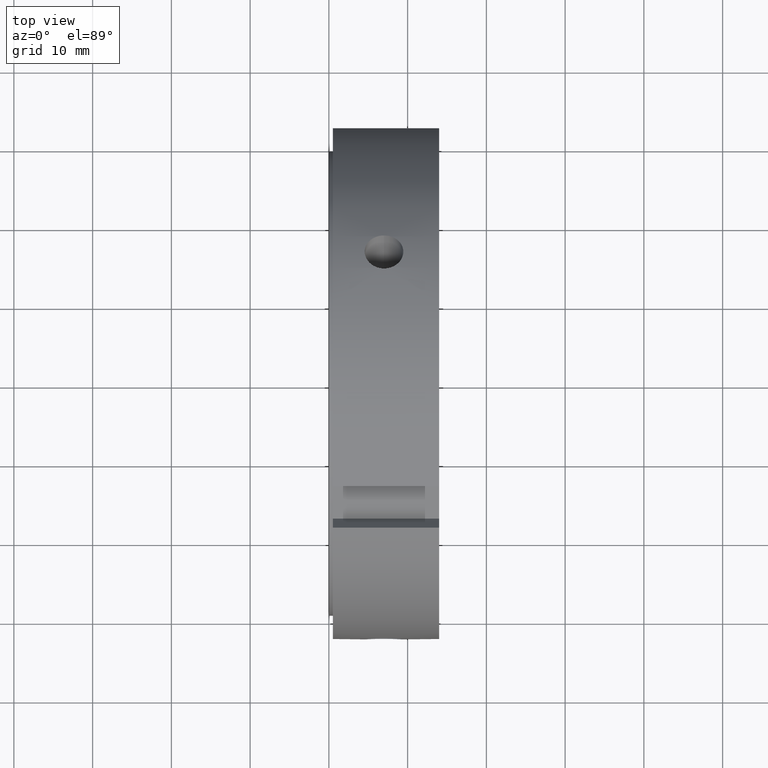
[diagram: clean part render]
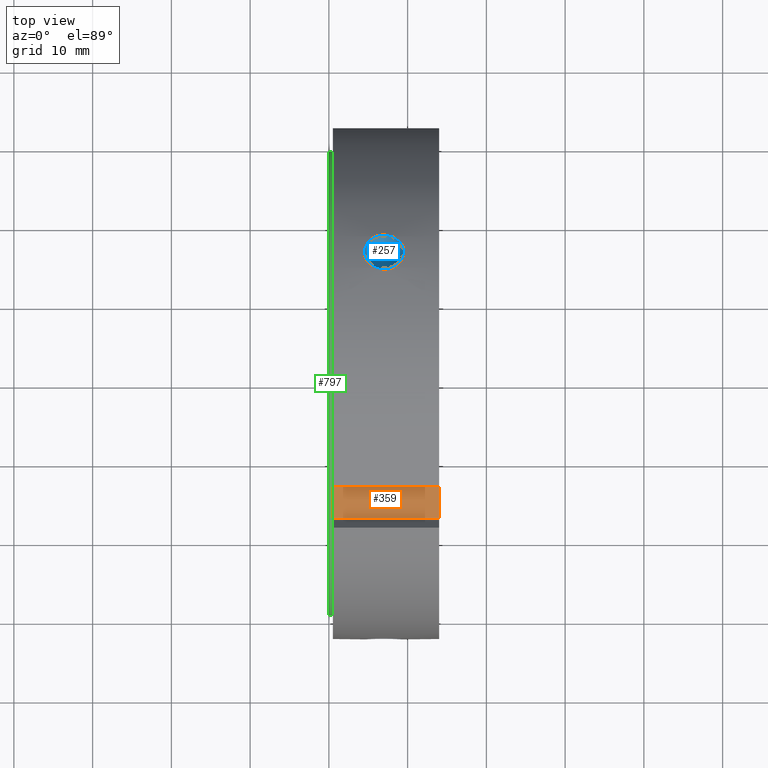
[diagram: same view with three faces highlighted in distinct colors, each labeled with its STEP entity id]
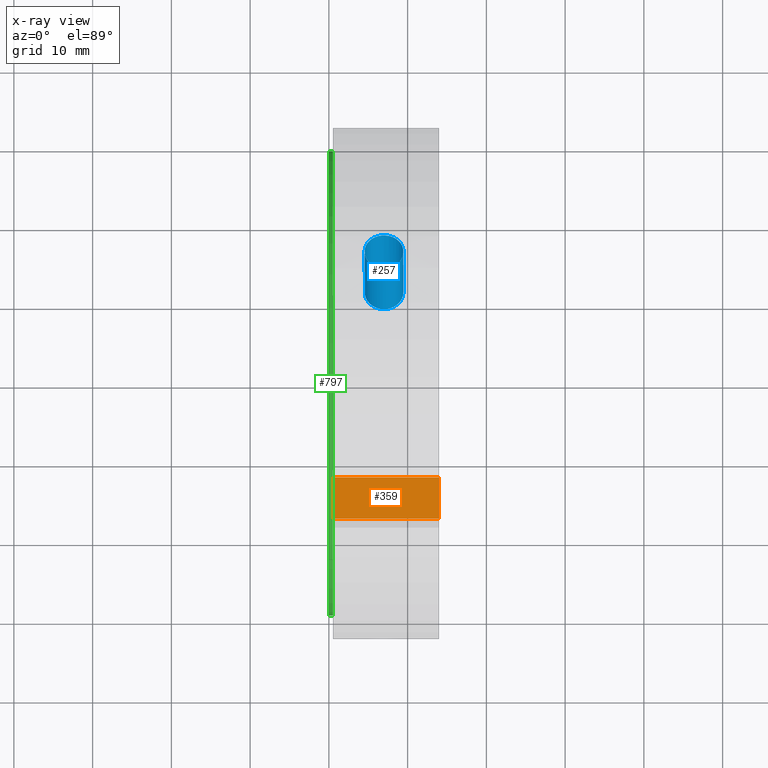
[diagram: x-ray of the same camera — body ghosted, the three highlighted faces saturated]
A machine part, top view with three faces highlighted in distinct colors.
The next image is the same camera in x-ray (body ghosted, the three faces saturated) — at least one of them is partly hidden behind the body in this view.
Their STEP definitions:

[orange] entity #359 — the highlighted planar face has unit normal (0, 0.5, -0.866).
#263=CARTESIAN_POINT('',(0.499999999999994,-12.401923788646680,27.480762113533164));
#264=VERTEX_POINT('',#263);
#273=CARTESIAN_POINT('',(13.999999999999995,-12.401923788646680,27.480762113533164));
#274=VERTEX_POINT('',#273);
#275=CARTESIAN_POINT('',(13.999999999999995,-12.401923788646680,27.480762113533164));
#276=DIRECTION('',(-1.0,0.0,0.0));
#277=VECTOR('',#276,13.500000000000000);
#278=LINE('',#275,#277);
#279=EDGE_CURVE('',#274,#264,#278,.T.);
#305=CARTESIAN_POINT('',(0.499999999999994,-17.598076211353309,24.480762113533167));
#306=VERTEX_POINT('',#305);
#321=CARTESIAN_POINT('',(13.999999999999995,-17.598076211353309,24.480762113533167));
#322=VERTEX_POINT('',#321);
#329=CARTESIAN_POINT('',(13.999999999999995,-17.598076211353309,24.480762113533167));
#330=DIRECTION('',(-1.0,0.0,0.0));
#331=VECTOR('',#330,13.500000000000000);
#332=LINE('',#329,#331);
#333=EDGE_CURVE('',#322,#306,#332,.T.);
#338=CARTESIAN_POINT('',(13.999999999999995,-17.598076211353309,24.480762113533167));
#339=DIRECTION('',(0.0,0.500000000000000,-0.866025403784439));
#340=DIRECTION('',(0.0,0.866025403784439,0.500000000000000));
#341=AXIS2_PLACEMENT_3D('',#338,#339,#340);
#342=PLANE('',#341);
#343=CARTESIAN_POINT('',(0.499999999999993,-17.598076211353316,24.480762113533167));
#344=DIRECTION('',(0.0,0.866025403784439,0.500000000000000));
#345=VECTOR('',#344,6.0);
#346=LINE('',#343,#345);
#347=EDGE_CURVE('',#306,#264,#346,.T.);
#348=ORIENTED_EDGE('',*,*,#347,.F.);
#349=ORIENTED_EDGE('',*,*,#333,.F.);
#350=CARTESIAN_POINT('',(13.999999999999995,-12.401923788646682,27.480762113533164));
#351=DIRECTION('',(0.0,-0.866025403784439,-0.500000000000000));
#352=VECTOR('',#351,5.999999999999996);
#353=LINE('',#350,#352);
#354=EDGE_CURVE('',#274,#322,#353,.T.);
#355=ORIENTED_EDGE('',*,*,#354,.F.);
#356=ORIENTED_EDGE('',*,*,#279,.T.);
#357=EDGE_LOOP('',(#348,#349,#355,#356));
#358=FACE_OUTER_BOUND('',#357,.T.);
#359=ADVANCED_FACE('',(#358),#342,.F.);

[blue] entity #257 — the highlighted cylindrical surface (bore or boss wall) has radius 2.4585 mm, axis along (0, -0.5, -0.866).
#170=CARTESIAN_POINT('',(6.999999999999994,46.443462258661853,80.442436311409836));
#171=DIRECTION('',(0.0,-0.500000000000001,-0.866025403784438));
#172=DIRECTION('',(-1.0,0.0,0.0));
#173=AXIS2_PLACEMENT_3D('',#170,#171,#172);
#174=CYLINDRICAL_SURFACE('',#173,2.458500000000000);
#175=CARTESIAN_POINT('',(6.999999999999994,18.332562733255489,26.835930086942248));
#176=VERTEX_POINT('',#175);
#177=CARTESIAN_POINT('',(6.999999999999994,18.332562733255489,26.835930086942241));
#178=CARTESIAN_POINT('',(7.308821499924727,18.332562733255489,26.835930086942241));
#179=CARTESIAN_POINT('',(7.638146662988192,18.281526847216313,26.871017762312540));
#180=CARTESIAN_POINT('',(8.243835254064029,18.073000177151062,27.011710127379004));
#181=CARTESIAN_POINT('',(8.520208722892996,17.915387760661726,27.117091198361180));
#182=CARTESIAN_POINT('',(8.956635077962162,17.549120387156776,27.355550208434138));
#183=CARTESIAN_POINT('',(9.145822157180259,17.315994303325329,27.504511139304189));
#184=CARTESIAN_POINT('',(9.396757878626822,16.800224395401898,27.822549343795899));
#185=CARTESIAN_POINT('',(9.458499999999994,16.517446967275813,27.991415044443599));
#186=CARTESIAN_POINT('',(9.458499999999994,15.982553032724198,28.300236201544877));
#187=CARTESIAN_POINT('',(9.396757878626824,15.694922332072395,28.460695787595036));
#188=CARTESIAN_POINT('',(9.145822157180261,15.161608213646865,28.748346528118436));
#189=CARTESIAN_POINT('',(8.956635077962162,14.916041221426299,28.875759173566227));
#190=CARTESIAN_POINT('',(8.520208722892996,14.526395974189356,29.073726518562442));
#191=CARTESIAN_POINT('',(8.243835254064027,14.356327081396108,29.157532339702961));
#192=CARTESIAN_POINT('',(7.638146662988192,14.130220584097410,29.267775550812818));
#193=CARTESIAN_POINT('',(7.308821499924727,14.074315822847403,29.294430086942249));
#194=CARTESIAN_POINT('',(6.691178500075261,14.074315822847403,29.294430086942249));
#195=CARTESIAN_POINT('',(6.361853337011797,14.130220584097408,29.267775550812818));
#196=CARTESIAN_POINT('',(5.756164745935962,14.356327081396106,29.157532339702961));
#197=CARTESIAN_POINT('',(5.479791277106996,14.526395974189352,29.073726518562445));
#198=CARTESIAN_POINT('',(5.043364922037828,14.916041221426294,28.875759173566237));
#199=CARTESIAN_POINT('',(4.854177842819732,15.161608213646861,28.748346528118439));
#200=CARTESIAN_POINT('',(4.603242121373167,15.694922332072391,28.460695787595039));
#201=CARTESIAN_POINT('',(4.541499999999994,15.982553032724196,28.300236201544870));
#202=CARTESIAN_POINT('',(4.541499999999994,16.517446967275813,27.991415044443599));
#203=CARTESIAN_POINT('',(4.603242121373166,16.800224395401891,27.822549343795902));
#204=CARTESIAN_POINT('',(4.854177842819729,17.315994303325326,27.504511139304192));
#205=CARTESIAN_POINT('',(5.043364922037828,17.549120387156776,27.355550208434138));
#206=CARTESIAN_POINT('',(5.479791277106994,17.915387760661726,27.117091198361180));
#207=CARTESIAN_POINT('',(5.756164745935958,18.073000177151062,27.011710127379004));
#208=CARTESIAN_POINT('',(6.361853337011796,18.281526847216313,26.871017762312540));
#209=CARTESIAN_POINT('',(6.691178500075260,18.332562733255489,26.835930086942241));
#210=CARTESIAN_POINT('',(6.999999999999993,18.332562733255489,26.835930086942241));
#211=B_SPLINE_CURVE_WITH_KNOTS('',3,(#177,#178,#179,#180,#181,#182,#183,#184,#185,#186,#187,#188,#189,#190,#191,#192,#193,#194,#195,#196,#197,#198,#199,#200,#201,#202,#203,#204,#205,#206,#207,#208,#209,#210),.UNSPECIFIED.,.T.,.U.,(4,2,2,2,2,2,2,2,2,2,2,2,2,2,2,2,4),(0.0,0.092646449977420,0.185292899954840,0.277939247085222,0.370585594215604,0.463231941345986,0.555878288476367,0.648524738453787,0.741171188431207,0.833817638408627,0.926464088386047,1.019110435516429,1.111756782646812,1.204403129777194,1.297049476907576,1.389695926884996,1.482342376862416),.UNSPECIFIED.);
#212=EDGE_CURVE('',#176,#176,#211,.T.);
#213=ORIENTED_EDGE('',*,*,#212,.F.);
#214=EDGE_LOOP('',(#213));
#215=FACE_OUTER_BOUND('',#214,.T.);
#216=CARTESIAN_POINT('',(6.999999999999994,13.311763771225131,18.139651190116588));
#217=VERTEX_POINT('',#216);
#218=CARTESIAN_POINT('',(6.999999999999993,13.311763771225127,18.139651190116588));
#219=CARTESIAN_POINT('',(6.691039606320619,13.311763771225127,18.139651190116588));
#220=CARTESIAN_POINT('',(6.361655301601024,13.261777622904932,18.176665359321888));
#221=CARTESIAN_POINT('',(5.756005436668366,13.057158723953332,18.324205720284191));
#222=CARTESIAN_POINT('',(5.479718704991167,12.902351376096037,18.434402624333682));
#223=CARTESIAN_POINT('',(5.043438312237379,12.541426215450567,18.681822693873336));
#224=CARTESIAN_POINT('',(4.854271935280004,12.311145769824947,18.835539652057975));
#225=CARTESIAN_POINT('',(4.603295976404795,11.799314472428611,19.160324687455493));
#226=CARTESIAN_POINT('',(4.541499999999994,11.517566249116411,19.331092139196446));
#227=CARTESIAN_POINT('',(4.541499999999994,10.982433750883601,19.640051031103280));
#228=CARTESIAN_POINT('',(4.603295976404795,10.693670687880299,19.798668424092291));
#229=CARTESIAN_POINT('',(4.854271935280004,10.156482947758853,20.079534812390708));
#230=CARTESIAN_POINT('',(5.043438312237381,9.908219934165684,20.202105049204981));
#231=CARTESIAN_POINT('',(5.479718704991166,9.513485288215493,20.390965372419107));
#232=CARTESIAN_POINT('',(5.756005436668366,9.340648295961591,20.469934016331276));
#233=CARTESIAN_POINT('',(6.361655301601022,9.110565145808913,20.573369000436607));
#234=CARTESIAN_POINT('',(6.691039606320620,9.053516860817041,20.598151190116589));
#235=CARTESIAN_POINT('',(7.308960393679368,9.053516860817041,20.598151190116589));
#236=CARTESIAN_POINT('',(7.638344698398965,9.110565145808913,20.573369000436607));
#237=CARTESIAN_POINT('',(8.243994563331622,9.340648295961591,20.469934016331276));
#238=CARTESIAN_POINT('',(8.520281295008822,9.513485288215493,20.390965372419107));
#239=CARTESIAN_POINT('',(8.956561687762608,9.908219934165684,20.202105049204981));
#240=CARTESIAN_POINT('',(9.145728064719982,10.156482947758857,20.079534812390708));
#241=CARTESIAN_POINT('',(9.396704023595191,10.693670687880301,19.798668424092295));
#242=CARTESIAN_POINT('',(9.458499999999994,10.982433750883601,19.640051031103280));
#243=CARTESIAN_POINT('',(9.458499999999994,11.517566249116413,19.331092139196446));
#244=CARTESIAN_POINT('',(9.396704023595193,11.799314472428614,19.160324687455489));
#245=CARTESIAN_POINT('',(9.145728064719981,12.311145769824952,18.835539652057971));
#246=CARTESIAN_POINT('',(8.956561687762608,12.541426215450567,18.681822693873336));
#247=CARTESIAN_POINT('',(8.520281295008820,12.902351376096037,18.434402624333682));
#248=CARTESIAN_POINT('',(8.243994563331619,13.057158723953332,18.324205720284191));
#249=CARTESIAN_POINT('',(7.638344698398964,13.261777622904932,18.176665359321888));
#250=CARTESIAN_POINT('',(7.308960393679367,13.311763771225129,18.139651190116588));
#251=CARTESIAN_POINT('',(6.999999999999994,13.311763771225129,18.139651190116588));
#252=B_SPLINE_CURVE_WITH_KNOTS('',3,(#218,#219,#220,#221,#222,#223,#224,#225,#226,#227,#228,#229,#230,#231,#232,#233,#234,#235,#236,#237,#238,#239,#240,#241,#242,#243,#244,#245,#246,#247,#248,#249,#250,#251),.UNSPECIFIED.,.T.,.U.,(4,2,2,2,2,2,2,2,2,2,2,2,2,2,2,2,4),(0.0,0.092688118103812,0.185376236207624,0.278063903779674,0.370751571351724,0.463439238923773,0.556126906495822,0.648815024599634,0.741503142703446,0.834191260807259,0.926879378911071,1.019567046483120,1.112254714055169,1.204942381627219,1.297630049199269,1.390318167303081,1.483006285406893),.UNSPECIFIED.);
#253=EDGE_CURVE('',#217,#217,#252,.T.);
#254=ORIENTED_EDGE('',*,*,#253,.F.);
#255=EDGE_LOOP('',(#254));
#256=FACE_BOUND('',#255,.T.);
#257=ADVANCED_FACE('',(#215,#256),#174,.F.);

[green] entity #797 — the highlighted cylindrical surface (bore or boss wall) has radius 29.5 mm, axis along (1, 0, 0).
#755=CARTESIAN_POINT('',(-8.881784E-015,29.500000000000000,0.0));
#756=VERTEX_POINT('',#755);
#757=CARTESIAN_POINT('',(-8.881784E-015,0.0,0.0));
#758=DIRECTION('',(1.0,0.0,0.0));
#759=DIRECTION('',(0.0,1.0,0.0));
#760=AXIS2_PLACEMENT_3D('',#757,#758,#759);
#761=CIRCLE('',#760,29.500000000000000);
#762=EDGE_CURVE('',#756,#756,#761,.T.);
#778=CARTESIAN_POINT('',(0.249999999999991,0.0,0.0));
#779=DIRECTION('',(1.0,0.0,0.0));
#780=DIRECTION('',(0.0,1.0,0.0));
#781=AXIS2_PLACEMENT_3D('',#778,#779,#780);
#782=CYLINDRICAL_SURFACE('',#781,29.500000000000000);
#783=CARTESIAN_POINT('',(0.499999999999992,29.500000000000000,0.0));
#784=VERTEX_POINT('',#783);
#785=CARTESIAN_POINT('',(0.499999999999992,0.0,0.0));
#786=DIRECTION('',(1.0,0.0,0.0));
#787=DIRECTION('',(0.0,1.0,0.0));
#788=AXIS2_PLACEMENT_3D('',#785,#786,#787);
#789=CIRCLE('',#788,29.500000000000000);
#790=EDGE_CURVE('',#784,#784,#789,.T.);
#791=ORIENTED_EDGE('',*,*,#790,.F.);
#792=EDGE_LOOP('',(#791));
#793=FACE_OUTER_BOUND('',#792,.T.);
#794=ORIENTED_EDGE('',*,*,#762,.T.);
#795=EDGE_LOOP('',(#794));
#796=FACE_BOUND('',#795,.T.);
#797=ADVANCED_FACE('',(#793,#796),#782,.T.);